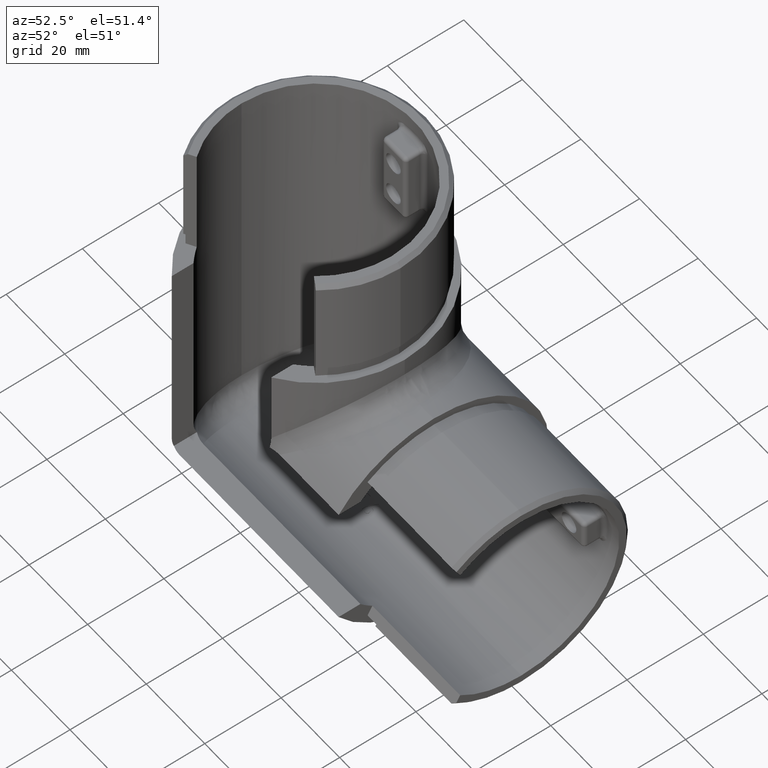
[diagram: clean part render]
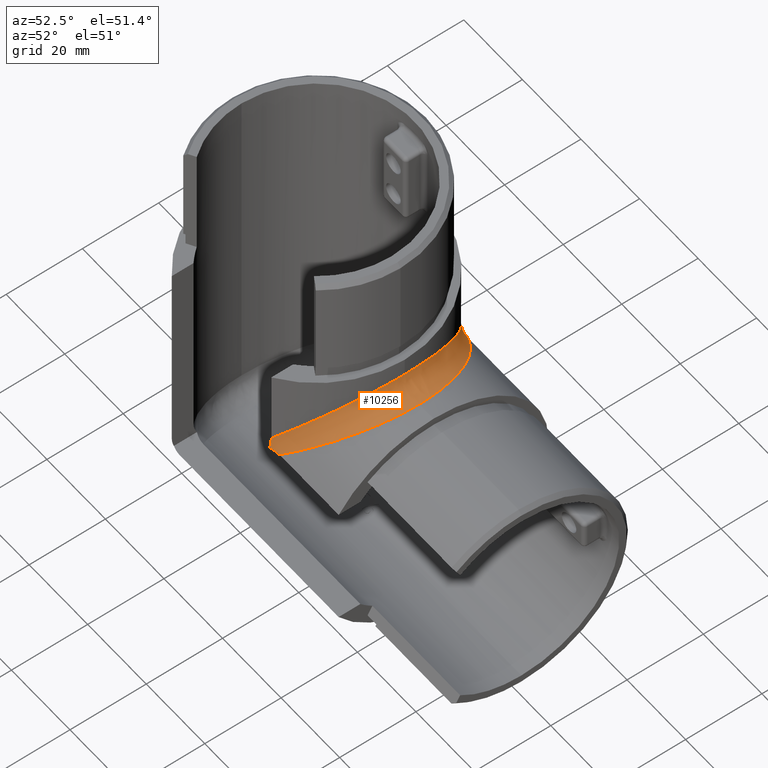
[diagram: same view with one face highlighted and labeled with its STEP entity id]
A machine part, auxiliary view. The second image highlights one B-rep face of the part: STEP entity #10256.
In plain terms, the highlighted face is a freeform B-spline surface patch.
Its self-contained STEP definition (entity closure, byte-faithful):
#142 =( BOUNDED_SURFACE ( )  B_SPLINE_SURFACE ( 3, 2, ( 
 ( #9745, #11246, #15720 ),
 ( #8462, #8396, #1053 ),
 ( #8588, #4125, #14576 ),
 ( #15969, #13059, #14320 ),
 ( #9995, #6898, #17294 ),
 ( #11313, #2413, #11566 ),
 ( #18977, #10056, #1181 ),
 ( #5588, #18847, #3873 ),
 ( #5644, #11377, #18727 ),
 ( #2658, #16029, #9806 ),
 ( #918, #7092, #1118 ),
 ( #17230, #3937, #9873 ),
 ( #14451, #2532, #17484 ),
 ( #14504, #11435, #11506 ),
 ( #8337, #4064, #12803 ),
 ( #5389, #15840, #15781 ),
 ( #12935, #17364, #2589 ),
 ( #18788, #977, #5524 ),
 ( #2481, #7018, #12870 ),
 ( #14387, #5464, #6956 ),
 ( #9936, #3999, #15911 ),
 ( #17426, #18910, #8527 ),
 ( #12992, #1368, #4383 ),
 ( #10307, #1427, #2723 ),
 ( #10126, #4259, #16276 ),
 ( #17742, #7406, #1495 ),
 ( #17678, #7149, #16223 ),
 ( #16161, #11680, #13130 ),
 ( #8771, #7209, #17617 ),
 ( #11811, #19099, #17815 ),
 ( #7341, #5967, #13256 ),
 ( #2784, #4324, #10366 ),
 ( #14818, #11746, #5837 ),
 ( #5904, #8827, #13317 ) ),
 .UNSPECIFIED., .F., .F., .F. ) 
 B_SPLINE_SURFACE_WITH_KNOTS ( ( 4, 2, 2, 2, 2, 2, 2, 2, 2, 2, 2, 2, 2, 2, 2, 2, 4 ),
 ( 3, 3 ),
 ( 1.570796326794896558, 1.733664776556087084, 1.896533226317277609, 2.059401676078468135, 2.222270125839658661, 2.385138575600849187, 2.548007025362039712, 2.710875475123230238, 2.873743924884420320, 3.036612374645610402, 3.199480824406800927, 3.362349274167991453, 3.525217723929181979, 3.688086173690372505, 3.850954623451563030, 4.013823073212753556, 4.176691522973944082 ),
 ( 0.000000000000000000, 1.000000000000000000 ),
 .UNSPECIFIED. ) 
 GEOMETRIC_REPRESENTATION_ITEM ( )  RATIONAL_B_SPLINE_SURFACE ( (
 ( 1.000000000000000000, 1.000000000000000000, 1.000000000000000000),
 ( 1.000000000000000000, 1.000004605686102055, 1.000000000000000000),
 ( 1.000000000000000000, 0.9977772375388577197, 1.000000000000000000),
 ( 1.000000000000000000, 0.9890330630805180823, 1.000000000000000000),
 ( 1.000000000000000000, 0.9825113714524289499, 1.000000000000000000),
 ( 1.000000000000000000, 0.9656136273977815598, 1.000000000000000000),
 ( 1.000000000000000000, 0.9552370616913770096, 1.000000000000000000),
 ( 1.000000000000000000, 0.9313834312523421310, 1.000000000000000000),
 ( 1.000000000000000000, 0.9179058185523922830, 1.000000000000000000),
 ( 1.000000000000000000, 0.8889305017633239991, 1.000000000000000000),
 ( 1.000000000000000000, 0.8734328338837282768, 1.000000000000000000),
 ( 1.000000000000000000, 0.8418351203143101813, 1.000000000000000000),
 ( 1.000000000000000000, 0.8257371755543482239, 1.000000000000000000),
 ( 1.000000000000000000, 0.7946687922481229238, 1.000000000000000000),
 ( 1.000000000000000000, 0.7797050748814695620, 1.000000000000000000),
 ( 1.000000000000000000, 0.7528255836546794422, 1.000000000000000000),
 ( 1.000000000000000000, 0.7409232671512194779, 1.000000000000000000),
 ( 1.000000000000000000, 0.7219804112723245959, 1.000000000000000000),
 ( 1.000000000000000000, 0.7149570539873224551, 1.000000000000000000),
 ( 1.000000000000000000, 0.7069996485665788200, 1.000000000000000000),
 ( 1.000000000000000000, 0.7060756663907237218, 1.000000000000000000),
 ( 1.000000000000000000, 0.7105028163171880351, 1.000000000000000000),
 ( 1.000000000000000000, 0.7158481021580531678, 1.000000000000000000),
 ( 1.000000000000000000, 0.7318721475992648884, 1.000000000000000000),
 ( 1.000000000000000000, 0.7425344454000109007, 1.000000000000000000),
 ( 1.000000000000000000, 0.7674913070781055335, 1.000000000000000000),
 ( 1.000000000000000000, 0.7817706562009894000, 1.000000000000000000),
 ( 1.000000000000000000, 0.8120188790462332662, 1.000000000000000000),
 ( 1.000000000000000000, 0.8279791876930013839, 1.000000000000000000),
 ( 1.000000000000000000, 0.8597746668418233540, 1.000000000000000000),
 ( 1.000000000000000000, 0.8756066982351272676, 1.000000000000000000),
 ( 1.000000000000000000, 0.9056268329699760367, 1.000000000000000000),
 ( 1.000000000000000000, 0.9198197782827448599, 1.000000000000000000),
 ( 1.000000000000000000, 0.9325904972616289035, 1.000000000000000000) ) ) 
 REPRESENTATION_ITEM ( '' )  SURFACE ( )  );
#871 = CARTESIAN_POINT ( 'NONE',  ( 16.99999999999999645, -25.21681248031514500, -22.54066634786253331 ) ) ;
#918 = CARTESIAN_POINT ( 'NONE',  ( 24.25395313702000877, 21.88378215606780230, -19.19611132058955860 ) ) ;
#977 = CARTESIAN_POINT ( 'NONE',  ( 29.71596654508078217, 5.395795995672635570, -10.28403345491747878 ) ) ;
#1018 = ORIENTED_EDGE ( 'NONE', *, *, #6848, .F. ) ;
#1053 = CARTESIAN_POINT ( 'NONE',  ( 1.636836716107993528, 30.14999999999998437, -38.09171440890771265 ) ) ;
#1118 = CARTESIAN_POINT ( 'NONE',  ( 20.80388867941043429, 21.88378215606780230, -15.74604686297998590 ) ) ;
#1181 = CARTESIAN_POINT ( 'NONE',  ( 12.70695577525402165, 27.39041767781854375, -25.18575470978073838 ) ) ;
#1368 = CARTESIAN_POINT ( 'NONE',  ( 29.90249937268381331, -4.188791870404590334, -10.09750062731618137 ) ) ;
#1427 = CARTESIAN_POINT ( 'NONE',  ( 29.38628606604962457, -6.994609467142637094, -10.61371393395037188 ) ) ;
#1495 = CARTESIAN_POINT ( 'NONE',  ( 27.34587548627241205, -12.80253098135949408, -8.119153454644086665 ) ) ;
#2413 = CARTESIAN_POINT ( 'NONE',  ( 12.07733678061878280, 27.69790848892934321, -27.92266321937661289 ) ) ;
#2481 = CARTESIAN_POINT ( 'NONE',  ( 34.75652271628661794, 4.787161400087480700, -10.18750611960117780 ) ) ;
#2532 = CARTESIAN_POINT ( 'NONE',  ( 25.16521543497094981, 16.77629014542998220, -14.83478456503091891 ) ) ;
#2589 = CARTESIAN_POINT ( 'NONE',  ( 28.64172692907965256, 9.557885967062608401, -6.608401275051619450 ) ) ;
#2658 = CARTESIAN_POINT ( 'NONE',  ( 22.83096279232576364, 22.98250361977687461, -20.41668483104770360 ) ) ;
#2723 = CARTESIAN_POINT ( 'NONE',  ( 29.05990855213908119, -8.198988997470282314, -6.120869465746785920 ) ) ;
#2743 = EDGE_CURVE ( 'NONE', #8383, #10564, #12781, .T. ) ;
#2784 = CARTESIAN_POINT ( 'NONE',  ( 21.14438301666483611, -24.14049989428218623, -21.86335283207741043 ) ) ;
#3082 = ORIENTED_EDGE ( 'NONE', *, *, #17298, .F. ) ;
#3652 = CARTESIAN_POINT ( 'NONE',  ( 30.14999999999999503, 17.66146109445117673, -4.850000000000003197 ) ) ;
#3773 = CARTESIAN_POINT ( 'NONE',  ( 19.33697634412542854, -24.90025100275095227, -22.99999999999999289 ) ) ;
#3873 = CARTESIAN_POINT ( 'NONE',  ( 15.59755577343242017, 25.85378037220632663, -21.81578489432112278 ) ) ;
#3891 = CARTESIAN_POINT ( 'NONE',  ( 29.61248791423131621, -19.16524259710811862, -14.59981477627098911 ) ) ;
#3937 = CARTESIAN_POINT ( 'NONE',  ( 24.20428581782698174, 18.14389891274101174, -15.79571418218937673 ) ) ;
#3999 = CARTESIAN_POINT ( 'NONE',  ( 30.18000593406190646, -0.08420857656056741913, -9.819994065934750438 ) ) ;
#4064 = CARTESIAN_POINT ( 'NONE',  ( 27.51594949266982937, 12.53432081867575221, -12.48405050732839960 ) ) ;
#4079 = CARTESIAN_POINT ( 'NONE',  ( 16.99999999999999645, -24.90025100275095227, -20.18076285240463719 ) ) ;
#4125 = CARTESIAN_POINT ( 'NONE',  ( 3.552722762596883133, 29.99275474533464703, -36.44727723739500647 ) ) ;
#4259 = CARTESIAN_POINT ( 'NONE',  ( 29.02717545348722439, -8.412504648324755863, -10.97282454651456263 ) ) ;
#4324 = CARTESIAN_POINT ( 'NONE',  ( 19.33766775289777229, -23.24005501632701254, -20.66233224710222771 ) ) ;
#4383 = CARTESIAN_POINT ( 'NONE',  ( 29.77673424282491155, -5.004778064160582574, -5.285167209444431080 ) ) ;
#5148 = VERTEX_POINT ( 'NONE', #6004 ) ;
#5389 = CARTESIAN_POINT ( 'NONE',  ( 32.73637711578708576, 11.10097519168204094, -11.92029103724421724 ) ) ;
#5464 = CARTESIAN_POINT ( 'NONE',  ( 30.15545687397649033, 1.263720184946000247, -9.844543126023502566 ) ) ;
#5524 = CARTESIAN_POINT ( 'NONE',  ( 29.50812446156263746, 6.400960584183260416, -5.598322559738522664 ) ) ;
#5588 = CARTESIAN_POINT ( 'NONE',  ( 18.18421510567887367, 25.85378037220541358, -24.40244422656585144 ) ) ;
#5644 = CARTESIAN_POINT ( 'NONE',  ( 19.79607600404003520, 24.96751435227461968, -23.01986652854179738 ) ) ;
#5837 = CARTESIAN_POINT ( 'NONE',  ( 16.79735871734179753, -25.09084657686625519, -20.41700965456711003 ) ) ;
#5904 = CARTESIAN_POINT ( 'NONE',  ( 17.94199820110810251, -25.92637175379414316, -24.61020637941935973 ) ) ;
#5967 = CARTESIAN_POINT ( 'NONE',  ( 21.86225980204747898, -20.89965166339999314, -18.13774019795251746 ) ) ;
#6004 = CARTESIAN_POINT ( 'NONE',  ( 19.81923714759534150, -24.90025100275095227, -22.99999999999999645 ) ) ;
#6166 = CARTESIAN_POINT ( 'NONE',  ( 35.14999999999997016, 3.692310099429269608E-15, -9.849999999999997868 ) ) ;
#6231 = VERTEX_POINT ( 'NONE', #10454 ) ;
#6466 = CARTESIAN_POINT ( 'NONE',  ( 4.848489788775060003E-15, 30.14999999999999503, -39.99999999999999289 ) ) ;
#6779 = CARTESIAN_POINT ( 'NONE',  ( 16.99999999999999645, -24.90025100275095227, -20.18076285240463719 ) ) ;
#6784 = VERTEX_POINT ( 'NONE', #8101 ) ;
#6848 = EDGE_CURVE ( 'NONE', #5148, #6784, #8294, .T. ) ;
#6898 = CARTESIAN_POINT ( 'NONE',  ( 8.761536015191053295, 28.90944129108362404, -31.23846398481345688 ) ) ;
#6956 = CARTESIAN_POINT ( 'NONE',  ( 30.15553227622820387, 1.531528248731776953, -4.843550265028240709 ) ) ;
#6970 = CARTESIAN_POINT ( 'NONE',  ( 16.99999999999999645, -25.35801441047130567, -23.00000000000000000 ) ) ;
#7018 = CARTESIAN_POINT ( 'NONE',  ( 29.92189011292514778, 4.014462794695051961, -10.07810988707484867 ) ) ;
#7032 = CARTESIAN_POINT ( 'NONE',  ( 16.99999999999999289, -25.10425533620945160, -22.07668160247203915 ) ) ;
#7092 = CARTESIAN_POINT ( 'NONE',  ( 22.01950627666223426, 20.72744812835847839, -17.98049372332199525 ) ) ;
#7149 = CARTESIAN_POINT ( 'NONE',  ( 27.43465379466442045, -12.72750596515365373, -12.56534620533748026 ) ) ;
#7209 = CARTESIAN_POINT ( 'NONE',  ( 25.04527023815732178, -16.96508811304104114, -14.95472976185072156 ) ) ;
#7341 = CARTESIAN_POINT ( 'NONE',  ( 24.06696496682615916, -22.03514579248110650, -19.35650088905335053 ) ) ;
#7406 = CARTESIAN_POINT ( 'NONE',  ( 28.04551918594746240, -11.28631613525315558, -11.95448081405079499 ) ) ;
#7738 = ORIENTED_EDGE ( 'NONE', *, *, #8655, .F. ) ;
#7910 = EDGE_CURVE ( 'NONE', #10564, #6231, #12173, .T. ) ;
#8101 = CARTESIAN_POINT ( 'NONE',  ( 16.99999999999999645, -25.35801441047130567, -23.00000000000000000 ) ) ;
#8149 = CARTESIAN_POINT ( 'NONE',  ( 30.14999999999999147, -10.17120608412537308, -4.850000000000007638 ) ) ;
#8294 = B_SPLINE_CURVE_WITH_KNOTS ( 'NONE', 3,
 ( #9712, #3773, #14211, #9498, #18931, #17496 ),
 .UNSPECIFIED., .F., .F.,
 ( 4, 2, 4 ),
 ( 0.000000000000000000, 0.001428079604909096188, 0.002856159209818192376 ),
 .UNSPECIFIED. ) ;
#8337 = CARTESIAN_POINT ( 'NONE',  ( 31.14288101013563548, 14.07563673375510760, -13.28711628860015104 ) ) ;
#8383 = VERTEX_POINT ( 'NONE', #6779 ) ;
#8396 = CARTESIAN_POINT ( 'NONE',  ( 1.772553155914326828, 30.14999999997657909, -38.22744684409847338 ) ) ;
#8462 = CARTESIAN_POINT ( 'NONE',  ( 1.908285591086944288, 30.14999999999998437, -38.36316328388585362 ) ) ;
#8527 = CARTESIAN_POINT ( 'NONE',  ( 30.00479710969802483, -3.378439883312248426, -5.019282971614901001 ) ) ;
#8588 = CARTESIAN_POINT ( 'NONE',  ( 3.816528322273649909, 30.01641232057456321, -36.72636333095881156 ) ) ;
#8655 = EDGE_CURVE ( 'NONE', #15947, #5148, #10730, .T. ) ;
#8771 = CARTESIAN_POINT ( 'NONE',  ( 27.91398775516002218, -18.39620750746485811, -16.05670751584466416 ) ) ;
#8796 = CARTESIAN_POINT ( 'NONE',  ( 35.14999999999998437, 17.66146109445118029, -9.849999999999997868 ) ) ;
#8827 = CARTESIAN_POINT ( 'NONE',  ( 16.47475023415866602, -25.28234572003928804, -23.52524976584133043 ) ) ;
#9497 = CARTESIAN_POINT ( 'NONE',  ( 16.99999999999999645, -24.90025100275095227, -20.18076285240463719 ) ) ;
#9498 = CARTESIAN_POINT ( 'NONE',  ( 17.92331839752795730, -25.10425533620945160, -22.99999999999999289 ) ) ;
#9712 = CARTESIAN_POINT ( 'NONE',  ( 19.81923714759534150, -24.90025100275095227, -22.99999999999999645 ) ) ;
#9745 = CARTESIAN_POINT ( 'NONE',  ( -2.152316749501472280E-15, 30.14999999999998437, -39.99999999999999289 ) ) ;
#9806 = CARTESIAN_POINT ( 'NONE',  ( 19.58331516895228930, 22.98250361977687461, -17.16903720767422925 ) ) ;
#9866 = EDGE_CURVE ( 'NONE', #6784, #8383, #18850, .T. ) ;
#9873 = CARTESIAN_POINT ( 'NONE',  ( 23.05075224114387922, 19.50293636242843931, -13.12656911189614739 ) ) ;
#9885 = CARTESIAN_POINT ( 'NONE',  ( 16.99999999999999645, -24.94619332351760832, -21.13782474162236369 ) ) ;
#9936 = CARTESIAN_POINT ( 'NONE',  ( 35.20152679366676551, -0.1102675883543594165, -9.805802764467189903 ) ) ;
#9995 = CARTESIAN_POINT ( 'NONE',  ( 9.440317836355966108, 29.08836382397672082, -31.90254387578474748 ) ) ;
#10056 = CARTESIAN_POINT ( 'NONE',  ( 13.68244246542751341, 26.94255231641991699, -26.31755753457684577 ) ) ;
#10126 = CARTESIAN_POINT ( 'NONE',  ( 33.30932230358722990, -9.766824339101530583, -11.42884587615476555 ) ) ;
#10256 = ADVANCED_FACE ( 'NONE', ( #17821 ), #142, .F. ) ;
#10307 = CARTESIAN_POINT ( 'NONE',  ( 33.87913053425320697, -8.198988997470644691, -10.94009144786099696 ) ) ;
#10366 = CARTESIAN_POINT ( 'NONE',  ( 18.13664716792258602, -24.14049989428218623, -18.85561698333515679 ) ) ;
#10454 = CARTESIAN_POINT ( 'NONE',  ( 4.848489788775060003E-15, 30.14999999999999503, -39.99999999999999289 ) ) ;
#10564 = VERTEX_POINT ( 'NONE', #13143 ) ;
#10730 =( BOUNDED_CURVE ( )  B_SPLINE_CURVE ( 3, ( #12822, #17384, #3891, #18864 ),
 .UNSPECIFIED., .F., .F. ) 
 B_SPLINE_CURVE_WITH_KNOTS ( ( 4, 4 ),
 ( 3.141592653589793116, 4.113351960994086731 ),
 .UNSPECIFIED. ) 
 CURVE ( )  GEOMETRIC_REPRESENTATION_ITEM ( )  RATIONAL_B_SPLINE_CURVE ( ( 1.000000000000000000, 0.9228430033169884306, 0.9228430033169884306, 1.000000000000000000 ) ) 
 REPRESENTATION_ITEM ( '' )  );
#11213 =( BOUNDED_CURVE ( )  B_SPLINE_CURVE ( 3, ( #13284, #13093, #8796, #13230 ),
 .UNSPECIFIED., .F., .T. ) 
 B_SPLINE_CURVE_WITH_KNOTS ( ( 4, 4 ),
 ( 1.570796326794896780, 3.141592653589793116 ),
 .UNSPECIFIED. ) 
 CURVE ( )  GEOMETRIC_REPRESENTATION_ITEM ( )  RATIONAL_B_SPLINE_CURVE ( ( 1.000000000000000000, 0.8047378541243650485, 0.8047378541243650485, 1.000000000000000000 ) ) 
 REPRESENTATION_ITEM ( '' )  );
#11246 = CARTESIAN_POINT ( 'NONE',  ( -1.999235899608052950E-15, 30.14999999999998437, -39.99999999999999289 ) ) ;
#11313 = CARTESIAN_POINT ( 'NONE',  ( 13.05617584299048062, 28.04077096605270825, -28.80103266952689367 ) ) ;
#11377 = CARTESIAN_POINT ( 'NONE',  ( 18.15146210165107377, 24.17358087575789227, -21.84853789834475890 ) ) ;
#11435 = CARTESIAN_POINT ( 'NONE',  ( 26.82714625553970933, 13.97038853024449523, -13.17285374445835622 ) ) ;
#11506 = CARTESIAN_POINT ( 'NONE',  ( 25.90809243478862456, 15.50717421163243692, -9.795374823125117203 ) ) ;
#11566 = CARTESIAN_POINT ( 'NONE',  ( 11.19896733047310278, 28.04077096605270825, -26.94382415700951583 ) ) ;
#11680 = CARTESIAN_POINT ( 'NONE',  ( 25.92814399210197251, -15.56945591101244375, -14.07185600789619606 ) ) ;
#11746 = CARTESIAN_POINT ( 'NONE',  ( 17.96172432321978363, -24.31891858052229338, -22.03827567681561916 ) ) ;
#11811 = CARTESIAN_POINT ( 'NONE',  ( 25.42807831187765899, -20.88018426553460571, -18.18900252907179294 ) ) ;
#12173 =( BOUNDED_CURVE ( )  B_SPLINE_CURVE ( 3, ( #16862, #3652, #12518, #6466 ),
 .UNSPECIFIED., .F., .F. ) 
 B_SPLINE_CURVE_WITH_KNOTS ( ( 4, 4 ),
 ( 3.141592653589793116, 4.712388980384689674 ),
 .UNSPECIFIED. ) 
 CURVE ( )  GEOMETRIC_REPRESENTATION_ITEM ( )  RATIONAL_B_SPLINE_CURVE ( ( 1.000000000000000000, 0.8047378541243649375, 0.8047378541243649375, 1.000000000000000000 ) ) 
 REPRESENTATION_ITEM ( '' )  );
#12518 = CARTESIAN_POINT ( 'NONE',  ( 17.66146109445119095, 30.14999999999998792, -19.40960671741428456 ) ) ;
#12781 =( BOUNDED_CURVE ( )  B_SPLINE_CURVE ( 3, ( #9497, #18610, #8149, #18543 ),
 .UNSPECIFIED., .F., .F. ) 
 B_SPLINE_CURVE_WITH_KNOTS ( ( 4, 4 ),
 ( 2.169833346185499945, 3.141592653589793116 ),
 .UNSPECIFIED. ) 
 CURVE ( )  GEOMETRIC_REPRESENTATION_ITEM ( )  RATIONAL_B_SPLINE_CURVE ( ( 1.000000000000000000, 0.9228430033169885416, 0.9228430033169885416, 1.000000000000000000 ) ) 
 REPRESENTATION_ITEM ( '' )  );
#12803 = CARTESIAN_POINT ( 'NONE',  ( 26.71288371139953099, 14.07563673375578794, -8.857118989864355640 ) ) ;
#12822 = CARTESIAN_POINT ( 'NONE',  ( 35.14999999999997016, 3.692310099429269608E-15, -9.849999999999997868 ) ) ;
#12870 = CARTESIAN_POINT ( 'NONE',  ( 29.81249388039881509, 4.787161400087480700, -5.243477283713378512 ) ) ;
#12935 = CARTESIAN_POINT ( 'NONE',  ( 33.39159872494837344, 9.557885967062608401, -11.35827307092033855 ) ) ;
#12992 = CARTESIAN_POINT ( 'NONE',  ( 34.71483279055556892, -5.004778064160220197, -10.22326575717499786 ) ) ;
#13059 = CARTESIAN_POINT ( 'NONE',  ( 7.040178847598554057, 29.37507983447637727, -32.95982115240962429 ) ) ;
#13093 = CARTESIAN_POINT ( 'NONE',  ( 20.59039328258570123, 30.14999999999998792, -22.33853890554880905 ) ) ;
#13130 = CARTESIAN_POINT ( 'NONE',  ( 24.90806416358911335, -17.06722136910316934, -10.96124526201991500 ) ) ;
#13143 = CARTESIAN_POINT ( 'NONE',  ( 30.14999999999999503, 3.692310099429269608E-15, -4.850000000000013856 ) ) ;
#13230 = CARTESIAN_POINT ( 'NONE',  ( 35.14999999999997016, 3.692310099429269608E-15, -9.849999999999997868 ) ) ;
#13256 = CARTESIAN_POINT ( 'NONE',  ( 20.64349911094664236, -22.03514579248110650, -15.93303503317383374 ) ) ;
#13284 = CARTESIAN_POINT ( 'NONE',  ( 4.848489788775060003E-15, 30.14999999999999503, -39.99999999999999289 ) ) ;
#13317 = CARTESIAN_POINT ( 'NONE',  ( 15.38979362058063494, -25.92637175379414316, -22.05800179889189039 ) ) ;
#14211 = CARTESIAN_POINT ( 'NONE',  ( 18.86217525837762921, -24.94619332351762253, -22.99999999999999645 ) ) ;
#14320 = CARTESIAN_POINT ( 'NONE',  ( 6.503969688383213210, 29.48559112400913307, -32.41742837325031701 ) ) ;
#14387 = CARTESIAN_POINT ( 'NONE',  ( 35.15644973497175840, 1.531528248731776953, -9.844467723771790801 ) ) ;
#14451 = CARTESIAN_POINT ( 'NONE',  ( 28.06988761467082227, 18.22083991739823006, -15.92298402326365192 ) ) ;
#14504 = CARTESIAN_POINT ( 'NONE',  ( 30.20462517687487392, 15.50717421163243692, -14.09190756521136834 ) ) ;
#14576 = CARTESIAN_POINT ( 'NONE',  ( 3.273636669034381441, 30.01641232057567521, -36.18347167772052586 ) ) ;
#14818 = CARTESIAN_POINT ( 'NONE',  ( 19.58299034543288641, -25.09084657686625519, -23.20264128265819537 ) ) ;
#15015 = ORIENTED_EDGE ( 'NONE', *, *, #7910, .F. ) ;
#15720 = CARTESIAN_POINT ( 'NONE',  ( -1.846155049714634015E-15, 30.14999999999998437, -39.99999999999999289 ) ) ;
#15781 = CARTESIAN_POINT ( 'NONE',  ( 28.07970896275609007, 11.10097519168136060, -7.263622884212908914 ) ) ;
#15840 = CARTESIAN_POINT ( 'NONE',  ( 28.64534066343786733, 9.656184806718005831, -11.35465933656395521 ) ) ;
#15911 = CARTESIAN_POINT ( 'NONE',  ( 30.19419723553279766, -0.1102675883544554786, -4.798473206333223828 ) ) ;
#15947 = VERTEX_POINT ( 'NONE', #6166 ) ;
#15969 = CARTESIAN_POINT ( 'NONE',  ( 7.582571626755487237, 29.48559112401024862, -33.49603031162357070 ) ) ;
#16029 = CARTESIAN_POINT ( 'NONE',  ( 20.80341789197380464, 21.94965800393703859, -19.19658210803049414 ) ) ;
#16161 = CARTESIAN_POINT ( 'NONE',  ( 29.03875473798007789, -17.06722136910399712, -15.09193583641138225 ) ) ;
#16223 = CARTESIAN_POINT ( 'NONE',  ( 26.60936562758863033, -14.27036672747932755, -8.977804251747974362 ) ) ;
#16276 = CARTESIAN_POINT ( 'NONE',  ( 28.57115412384522912, -9.766824339101530583, -6.690677696412770104 ) ) ;
#16823 = ORIENTED_EDGE ( 'NONE', *, *, #2743, .F. ) ;
#16862 = CARTESIAN_POINT ( 'NONE',  ( 30.14999999999999503, 3.692310099429269608E-15, -4.850000000000013856 ) ) ;
#17194 = ORIENTED_EDGE ( 'NONE', *, *, #9866, .F. ) ;
#17230 = CARTESIAN_POINT ( 'NONE',  ( 26.87343088810384373, 19.50293636242843931, -16.94924775885611368 ) ) ;
#17241 = CARTESIAN_POINT ( 'NONE',  ( 16.99999999999999645, -24.90025100275089898, -20.66302365587456791 ) ) ;
#17294 = CARTESIAN_POINT ( 'NONE',  ( 8.097456124215243634, 29.08836382397672082, -30.55968216364402679 ) ) ;
#17298 = EDGE_CURVE ( 'NONE', #6231, #15947, #11213, .T. ) ;
#17364 = CARTESIAN_POINT ( 'NONE',  ( 29.07345003228731173, 8.226306270297197187, -10.92654996771437226 ) ) ;
#17384 = CARTESIAN_POINT ( 'NONE',  ( 35.14999999999998437, -10.17120608412537131, -9.849999999999996092 ) ) ;
#17426 = CARTESIAN_POINT ( 'NONE',  ( 34.98071702838509367, -3.378439883312344350, -9.995202890301973397 ) ) ;
#17484 = CARTESIAN_POINT ( 'NONE',  ( 24.07701597673634097, 18.22083991739823006, -11.93011238532917240 ) ) ;
#17496 = CARTESIAN_POINT ( 'NONE',  ( 16.99999999999999645, -25.35801441047130567, -23.00000000000000000 ) ) ;
#17617 = CARTESIAN_POINT ( 'NONE',  ( 23.94329248415532874, -18.39620750746485811, -12.08601224483996894 ) ) ;
#17678 = CARTESIAN_POINT ( 'NONE',  ( 31.02219574825202031, -14.27036672747849977, -13.39063437241086163 ) ) ;
#17742 = CARTESIAN_POINT ( 'NONE',  ( 31.88084654535590445, -12.80253098135949408, -12.65412451372757907 ) ) ;
#17815 = CARTESIAN_POINT ( 'NONE',  ( 21.81099747092819996, -20.88018426553460571, -14.57192168812233746 ) ) ;
#17821 = FACE_OUTER_BOUND ( 'NONE', #18591, .T. ) ;
#18543 = CARTESIAN_POINT ( 'NONE',  ( 30.14999999999999503, 3.692310099429269608E-15, -4.850000000000013856 ) ) ;
#18591 = EDGE_LOOP ( 'NONE', ( #1018, #7738, #3082, #15015, #16823, #17194 ) ) ;
#18610 = CARTESIAN_POINT ( 'NONE',  ( 25.40018522372900733, -19.16524259710811506, -10.38751208576867313 ) ) ;
#18727 = CARTESIAN_POINT ( 'NONE',  ( 16.98013347145819552, 24.96751435227461968, -20.20392399595995769 ) ) ;
#18788 = CARTESIAN_POINT ( 'NONE',  ( 34.40167744026147290, 6.400960584183260416, -10.49187553843735721 ) ) ;
#18847 = CARTESIAN_POINT ( 'NONE',  ( 16.71684239312464726, 25.18625760638031963, -23.28315760687087987 ) ) ;
#18850 = B_SPLINE_CURVE_WITH_KNOTS ( 'NONE', 3,
 ( #6970, #871, #7032, #9885, #17241, #4079 ),
 .UNSPECIFIED., .F., .F.,
 ( 4, 2, 4 ),
 ( 3.469446951953614189E-18, 0.001428079604909104645, 0.002856159209818205820 ),
 .UNSPECIFIED. ) ;
#18864 = CARTESIAN_POINT ( 'NONE',  ( 19.81923714759534150, -24.90025100275095227, -22.99999999999999645 ) ) ;
#18910 = CARTESIAN_POINT ( 'NONE',  ( 30.05269173489450552, -2.821246830942278017, -9.947308265108793179 ) ) ;
#18931 = CARTESIAN_POINT ( 'NONE',  ( 17.45933365213745958, -25.21681248031514500, -22.99999999999999645 ) ) ;
#18977 = CARTESIAN_POINT ( 'NONE',  ( 14.81424529021925451, 27.39041767781946035, -27.29304422474769609 ) ) ;
#19099 = CARTESIAN_POINT ( 'NONE',  ( 23.00764776545168289, -19.62810967568951170, -16.99235223454055443 ) ) ;